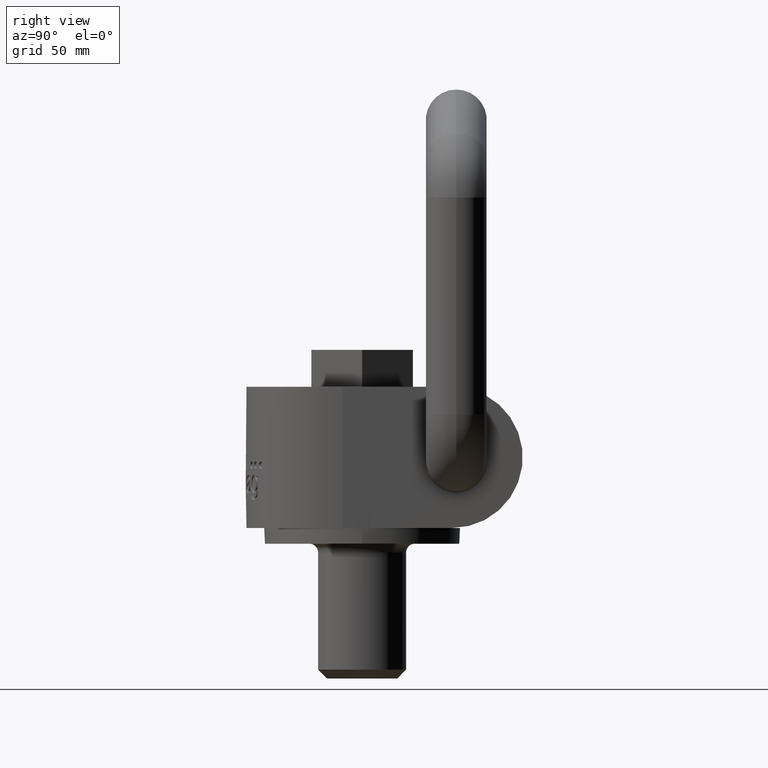
[diagram: clean part render]
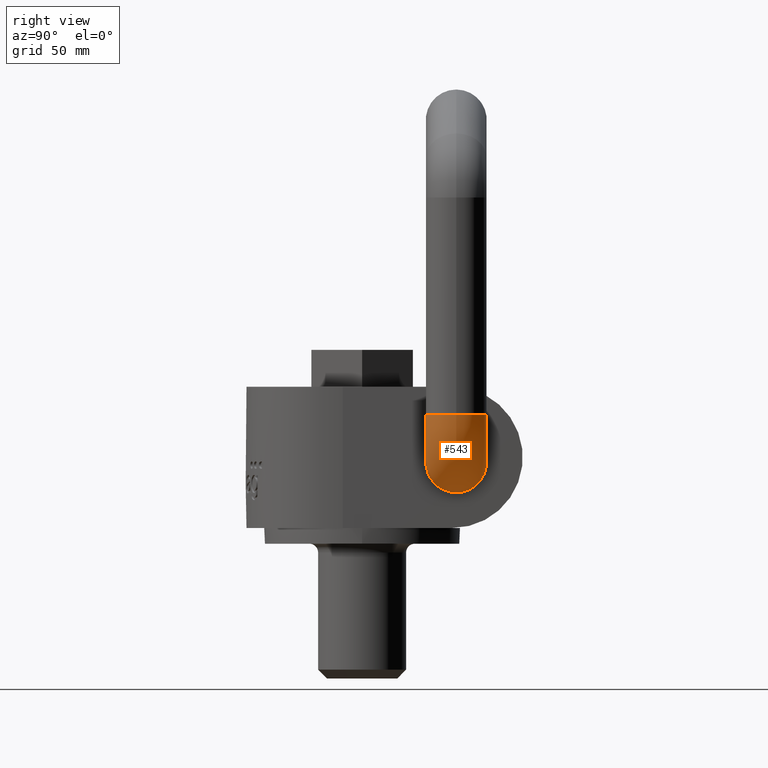
[diagram: same view with one face highlighted and labeled with its STEP entity id]
A machine part, right view. The second image highlights one B-rep face of the part: STEP entity #543.
In plain terms, the highlighted toroidal blend (fillet) surface has major radius 26.5 mm and minor (blend) radius 16.5 mm.
Its self-contained STEP definition (entity closure, byte-faithful):
#239=TOROIDAL_SURFACE('',#2619,26.5000000000001,16.5);
#543=ADVANCED_FACE('',(#623,#624),#239,.T.);
#623=FACE_BOUND('',#789,.T.);
#624=FACE_BOUND('',#790,.T.);
#789=EDGE_LOOP('',(#1769));
#790=EDGE_LOOP('',(#1770));
#1147=CIRCLE('',#2617,16.5);
#1148=CIRCLE('',#2618,16.5);
#1769=ORIENTED_EDGE('',*,*,#2307,.T.);
#1770=ORIENTED_EDGE('',*,*,#2308,.F.);
#1992=VERTEX_POINT('',#5106);
#1993=VERTEX_POINT('',#5108);
#2307=EDGE_CURVE('',#1992,#1992,#1147,.T.);
#2308=EDGE_CURVE('',#1993,#1993,#1148,.T.);
#2617=AXIS2_PLACEMENT_3D('',#5105,#3066,#3067);
#2618=AXIS2_PLACEMENT_3D('',#5107,#3068,#3069);
#2619=AXIS2_PLACEMENT_3D('',#5109,#3070,#3071);
#3066=DIRECTION('',(1.,0.,-6.71855003501204E-16));
#3067=DIRECTION('',(-8.41078048958452E-16,0.,-1.));
#3068=DIRECTION('',(1.17717655330863E-15,0.,1.));
#3069=DIRECTION('',(1.,0.,-1.26161707343768E-15));
#3070=DIRECTION('',(0.,-1.,0.));
#3071=DIRECTION('',(0.,0.,-1.));
#5105=CARTESIAN_POINT('',(47.5,51.,35.));
#5106=CARTESIAN_POINT('',(47.4999999999999,51.,18.4999999999999));
#5107=CARTESIAN_POINT('',(74.,51.,61.4999999999999));
#5108=CARTESIAN_POINT('',(90.5,51.,61.4999999999999));
#5109=CARTESIAN_POINT('',(47.5,51.,61.5));